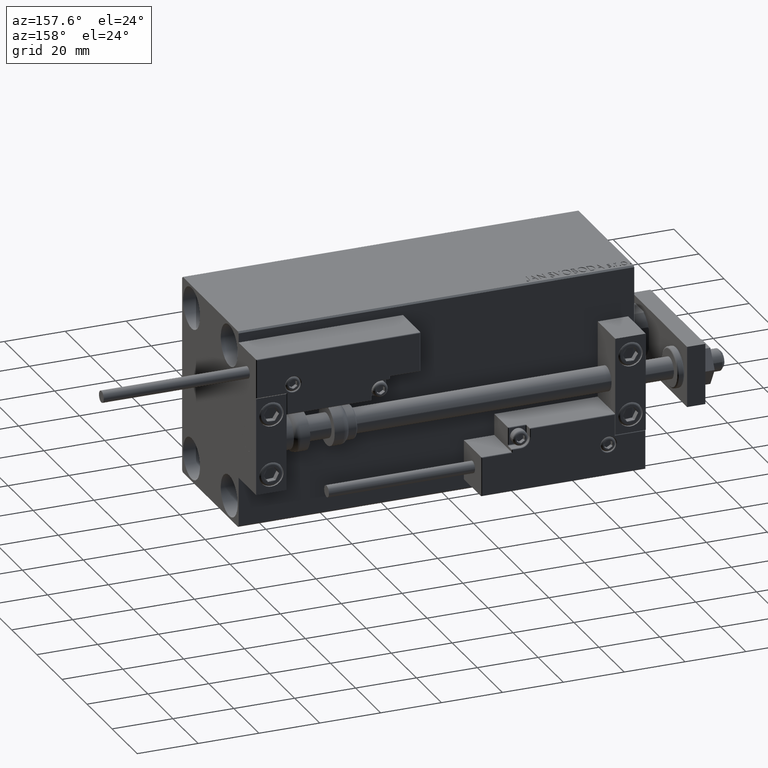
[diagram: clean part render]
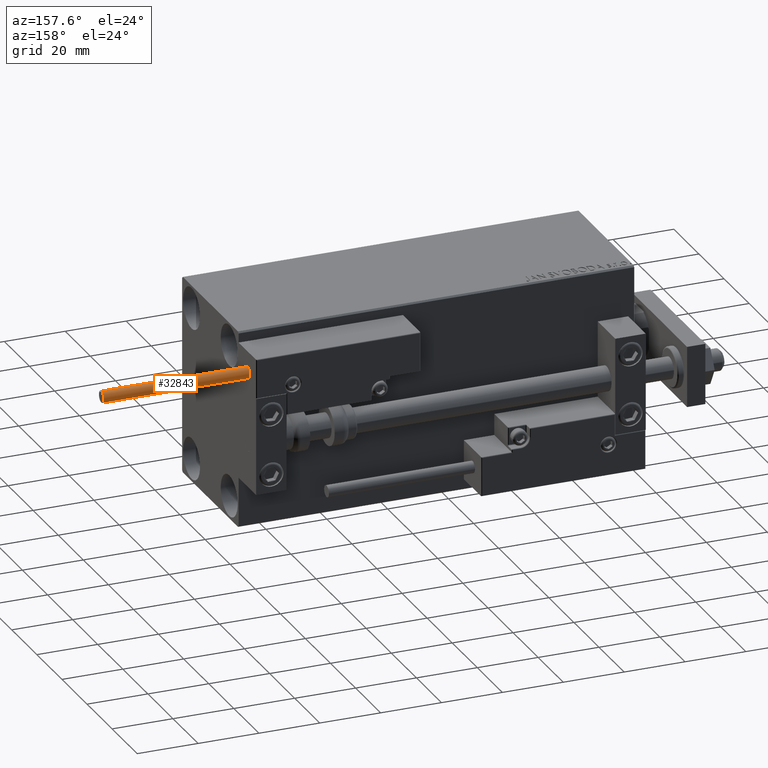
[diagram: same view with one face highlighted and labeled with its STEP entity id]
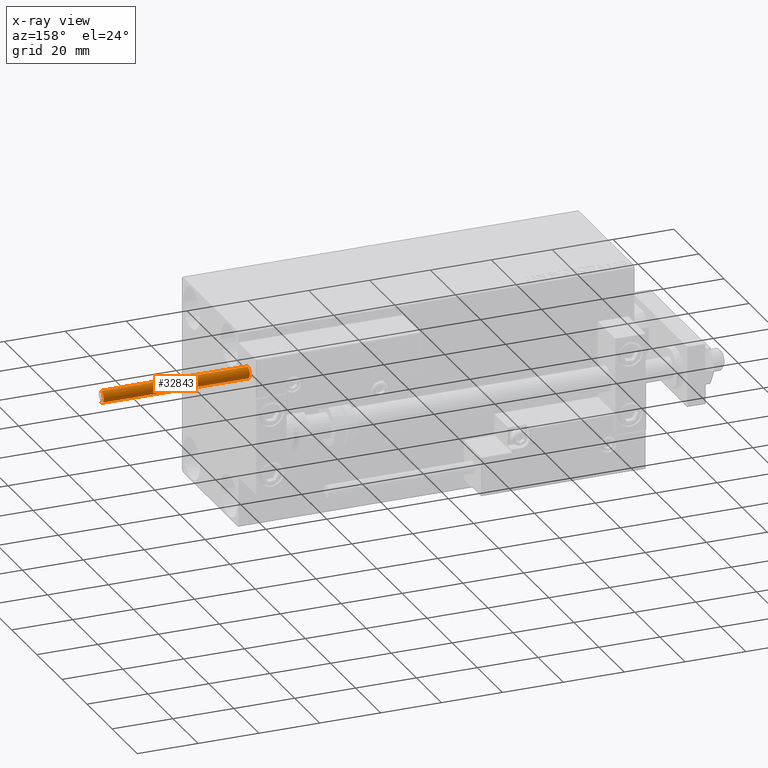
[diagram: x-ray of the same camera — body ghosted, the highlighted face saturated]
A machine part, auxiliary view. The second image highlights one B-rep face of the part: STEP entity #32843.
The next image is the same camera in x-ray: the body ghosted, the highlighted face saturated — about 0% of this face is hidden behind the body in this view.
In plain terms, the highlighted cylindrical surface (edge-blend (fillet) strip) has radius 1.9 mm, axis along (-1, -0, 0).
Its self-contained STEP definition (entity closure, byte-faithful):
#2002 = EDGE_CURVE ( 'NONE', #46268, #38262, #44412, .T. ) ;
#3713 = VERTEX_POINT ( 'NONE', #14269 ) ;
#4206 = FACE_OUTER_BOUND ( 'NONE', #12682, .T. ) ;
#6714 = VERTEX_POINT ( 'NONE', #49029 ) ;
#7023 = CYLINDRICAL_SURFACE ( 'NONE', #42977, 1.899999999999999467 ) ;
#7276 = CARTESIAN_POINT ( 'NONE',  ( 0.000000000000000000, 0.000000000000000000, 48.00000000000000000 ) ) ;
#10134 = DIRECTION ( 'NONE',  ( -0.000000000000000000, -0.000000000000000000, -1.000000000000000000 ) ) ;
#10595 = VECTOR ( 'NONE', #26880, 1000.000000000000000 ) ;
#12682 = EDGE_LOOP ( 'NONE', ( #41150, #45392, #45148, #43071 ) ) ;
#14188 = CARTESIAN_POINT ( 'NONE',  ( -1.899999999999999467, 0.000000000000000000, 48.00000000000000000 ) ) ;
#14269 = CARTESIAN_POINT ( 'NONE',  ( -1.899999999999999467, 0.000000000000000000, 0.000000000000000000 ) ) ;
#15499 = AXIS2_PLACEMENT_3D ( 'NONE', #39237, #28029, #43064 ) ;
#18036 = CARTESIAN_POINT ( 'NONE',  ( -1.899999999999999467, 0.000000000000000000, 48.00000000000000000 ) ) ;
#22463 = AXIS2_PLACEMENT_3D ( 'NONE', #28820, #29557, #25759 ) ;
#23412 = EDGE_CURVE ( 'NONE', #38262, #3713, #44986, .T. ) ;
#24417 = VECTOR ( 'NONE', #10134, 1000.000000000000000 ) ;
#25759 = DIRECTION ( 'NONE',  ( 1.000000000000000000, 0.000000000000000000, 0.000000000000000000 ) ) ;
#26880 = DIRECTION ( 'NONE',  ( -0.000000000000000000, -0.000000000000000000, -1.000000000000000000 ) ) ;
#28029 = DIRECTION ( 'NONE',  ( 0.000000000000000000, 0.000000000000000000, 1.000000000000000000 ) ) ;
#28820 = CARTESIAN_POINT ( 'NONE',  ( 0.000000000000000000, 0.000000000000000000, 48.00000000000000000 ) ) ;
#29557 = DIRECTION ( 'NONE',  ( 0.000000000000000000, 0.000000000000000000, 1.000000000000000000 ) ) ;
#30912 = CIRCLE ( 'NONE', #15499, 1.899999999999999467 ) ;
#32843 = ADVANCED_FACE ( 'NONE', ( #4206 ), #7023, .T. ) ;
#38262 = VERTEX_POINT ( 'NONE', #18036 ) ;
#39237 = CARTESIAN_POINT ( 'NONE',  ( 0.000000000000000000, 0.000000000000000000, 0.000000000000000000 ) ) ;
#40883 = EDGE_CURVE ( 'NONE', #6714, #3713, #30912, .T. ) ;
#41150 = ORIENTED_EDGE ( 'NONE', *, *, #2002, .F. ) ;
#41325 = CARTESIAN_POINT ( 'NONE',  ( 1.899999999999999467, 2.326828918379970872E-16, 48.00000000000000000 ) ) ;
#42977 = AXIS2_PLACEMENT_3D ( 'NONE', #7276, #46459, #46205 ) ;
#43064 = DIRECTION ( 'NONE',  ( 1.000000000000000000, 0.000000000000000000, 0.000000000000000000 ) ) ;
#43071 = ORIENTED_EDGE ( 'NONE', *, *, #23412, .F. ) ;
#44394 = EDGE_CURVE ( 'NONE', #46268, #6714, #49800, .T. ) ;
#44412 = CIRCLE ( 'NONE', #22463, 1.899999999999999467 ) ;
#44986 = LINE ( 'NONE', #14188, #24417 ) ;
#45148 = ORIENTED_EDGE ( 'NONE', *, *, #40883, .T. ) ;
#45392 = ORIENTED_EDGE ( 'NONE', *, *, #44394, .T. ) ;
#45990 = CARTESIAN_POINT ( 'NONE',  ( 1.899999999999999467, 2.326828918379970872E-16, 48.00000000000000000 ) ) ;
#46205 = DIRECTION ( 'NONE',  ( -1.000000000000000000, 0.000000000000000000, 0.000000000000000000 ) ) ;
#46268 = VERTEX_POINT ( 'NONE', #41325 ) ;
#46459 = DIRECTION ( 'NONE',  ( -0.000000000000000000, -0.000000000000000000, -1.000000000000000000 ) ) ;
#49029 = CARTESIAN_POINT ( 'NONE',  ( 1.899999999999999467, 2.326828918379970872E-16, 0.000000000000000000 ) ) ;
#49800 = LINE ( 'NONE', #45990, #10595 ) ;